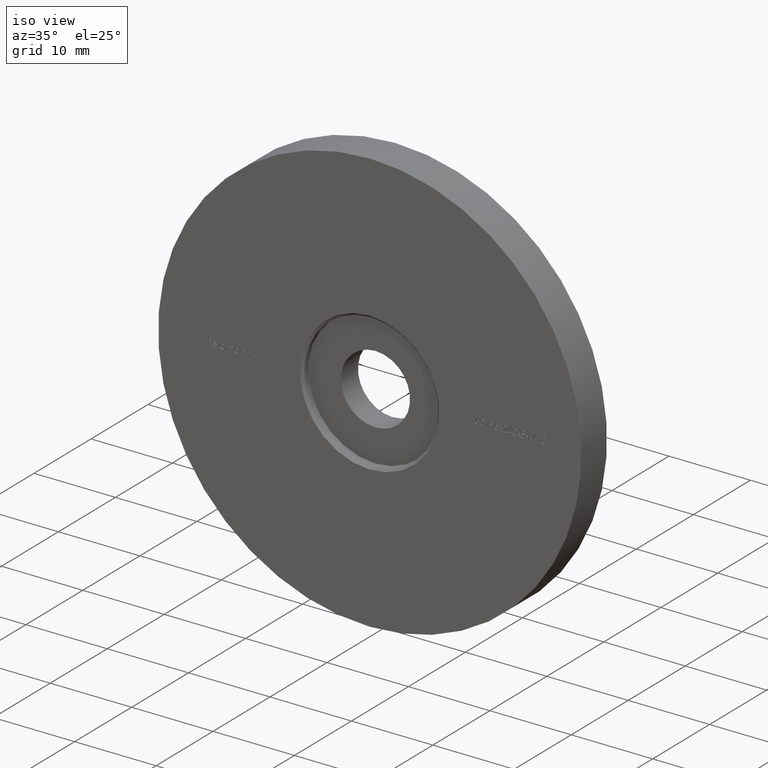
[diagram: clean part render]
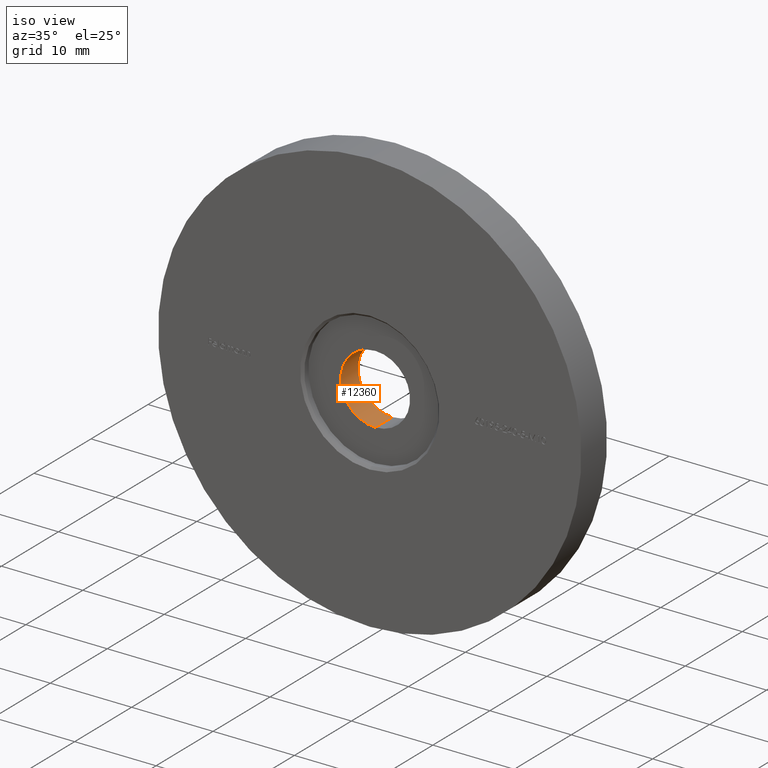
[diagram: same view with one face highlighted and labeled with its STEP entity id]
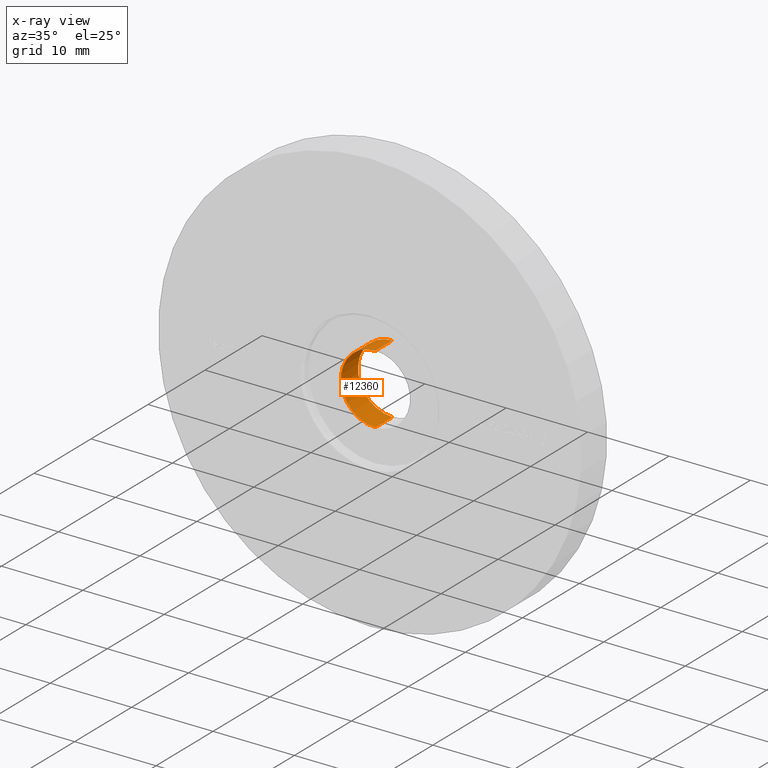
[diagram: x-ray of the same camera — body ghosted, the highlighted face saturated]
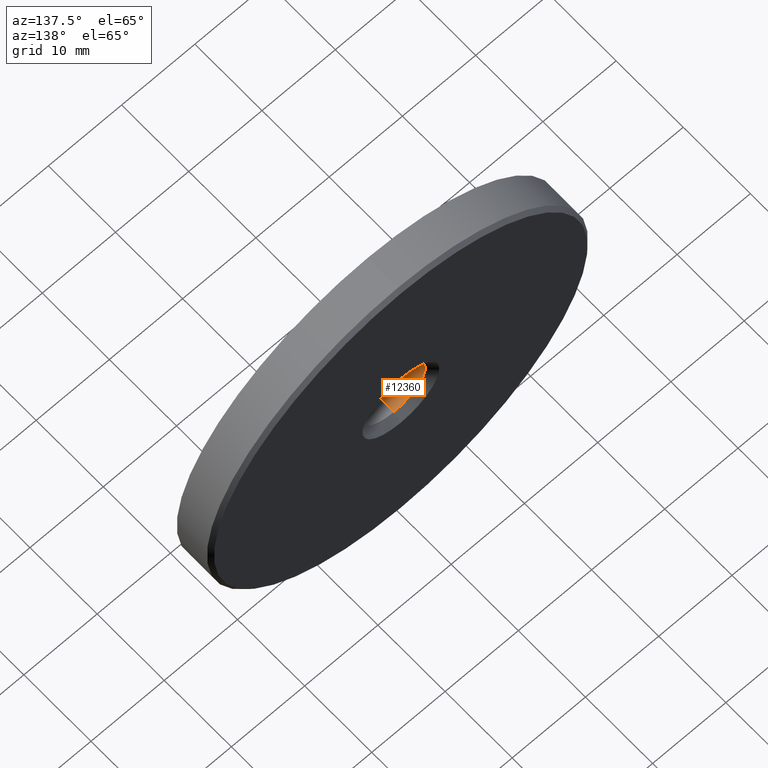
[diagram: same view with one face highlighted and labeled with its STEP entity id]
A machine part, iso view. The second image highlights one B-rep face of the part: STEP entity #12360.
The next image is the same camera in x-ray: the body ghosted, the highlighted face saturated — about 0% of this face is hidden behind the body in this view.
A second angle (auxiliary view) of the same face is appended — the face is thin or edge-on in the first view.
In plain terms, the highlighted cylindrical surface (partial cylindrical patch) has radius 4.25 mm, axis along (-0, 1, -0).
Its self-contained STEP definition (entity closure, byte-faithful):
#387 = AXIS2_PLACEMENT_3D ( 'NONE', #5628, #14075, #4485 ) ;
#747 = DIRECTION ( 'NONE',  ( 0.000000000000000000, 0.000000000000000000, 1.000000000000000000 ) ) ;
#803 = DIRECTION ( 'NONE',  ( 0.000000000000000000, 0.000000000000000000, -1.000000000000000000 ) ) ;
#1504 = VERTEX_POINT ( 'NONE', #7466 ) ;
#3050 = VERTEX_POINT ( 'NONE', #7781 ) ;
#3835 = VECTOR ( 'NONE', #15038, 1000.000000000000000 ) ;
#3852 = EDGE_CURVE ( 'NONE', #11224, #3050, #4788, .T. ) ;
#4485 = DIRECTION ( 'NONE',  ( 0.000000000000000000, 0.000000000000000000, 1.000000000000000000 ) ) ;
#4498 = AXIS2_PLACEMENT_3D ( 'NONE', #7954, #9174, #747 ) ;
#4788 = CIRCLE ( 'NONE', #387, 4.249999999999993783 ) ;
#5628 = CARTESIAN_POINT ( 'NONE',  ( 0.000000000000000000, 1.500000000000000888, 0.000000000000000000 ) ) ;
#5882 = EDGE_CURVE ( 'NONE', #1504, #11532, #12982, .T. ) ;
#6340 = ORIENTED_EDGE ( 'NONE', *, *, #3852, .T. ) ;
#6848 = FACE_OUTER_BOUND ( 'NONE', #11913, .T. ) ;
#6850 = ORIENTED_EDGE ( 'NONE', *, *, #10265, .F. ) ;
#6859 = DIRECTION ( 'NONE',  ( -0.000000000000000000, -1.000000000000000000, -0.000000000000000000 ) ) ;
#6899 = CARTESIAN_POINT ( 'NONE',  ( 0.000000000000000000, 2.500000000000000000, 4.249999999999993783 ) ) ;
#7036 = LINE ( 'NONE', #10227, #3835 ) ;
#7466 = CARTESIAN_POINT ( 'NONE',  ( 0.000000000000000000, -1.500000000000001776, 4.249999999999993783 ) ) ;
#7781 = CARTESIAN_POINT ( 'NONE',  ( 0.000000000000000000, 1.500000000000000888, 4.249999999999993783 ) ) ;
#7954 = CARTESIAN_POINT ( 'NONE',  ( 0.000000000000000000, 2.500000000000000000, 0.000000000000000000 ) ) ;
#8655 = CARTESIAN_POINT ( 'NONE',  ( 5.204748896376243797E-16, 1.500000000000000888, -4.249999999999993783 ) ) ;
#8723 = VECTOR ( 'NONE', #10528, 1000.000000000000000 ) ;
#9174 = DIRECTION ( 'NONE',  ( -0.000000000000000000, 1.000000000000000000, -0.000000000000000000 ) ) ;
#9567 = EDGE_CURVE ( 'NONE', #11532, #11224, #7036, .T. ) ;
#10227 = CARTESIAN_POINT ( 'NONE',  ( 5.204748896376243797E-16, 2.500000000000000000, -4.249999999999993783 ) ) ;
#10265 = EDGE_CURVE ( 'NONE', #1504, #3050, #13613, .T. ) ;
#10528 = DIRECTION ( 'NONE',  ( -0.000000000000000000, 1.000000000000000000, -0.000000000000000000 ) ) ;
#10572 = ORIENTED_EDGE ( 'NONE', *, *, #9567, .T. ) ;
#11224 = VERTEX_POINT ( 'NONE', #8655 ) ;
#11532 = VERTEX_POINT ( 'NONE', #13016 ) ;
#11913 = EDGE_LOOP ( 'NONE', ( #13945, #10572, #6340, #6850 ) ) ;
#11956 = CYLINDRICAL_SURFACE ( 'NONE', #4498, 4.249999999999993783 ) ;
#12360 = ADVANCED_FACE ( 'NONE', ( #6848 ), #11956, .F. ) ;
#12982 = CIRCLE ( 'NONE', #14769, 4.249999999999993783 ) ;
#13016 = CARTESIAN_POINT ( 'NONE',  ( 5.204748896376243797E-16, -1.500000000000001776, -4.249999999999993783 ) ) ;
#13613 = LINE ( 'NONE', #6899, #8723 ) ;
#13945 = ORIENTED_EDGE ( 'NONE', *, *, #5882, .T. ) ;
#14075 = DIRECTION ( 'NONE',  ( 0.000000000000000000, 1.000000000000000000, 0.000000000000000000 ) ) ;
#14769 = AXIS2_PLACEMENT_3D ( 'NONE', #15354, #6859, #803 ) ;
#15038 = DIRECTION ( 'NONE',  ( -0.000000000000000000, 1.000000000000000000, -0.000000000000000000 ) ) ;
#15354 = CARTESIAN_POINT ( 'NONE',  ( 0.000000000000000000, -1.500000000000001776, 0.000000000000000000 ) ) ;